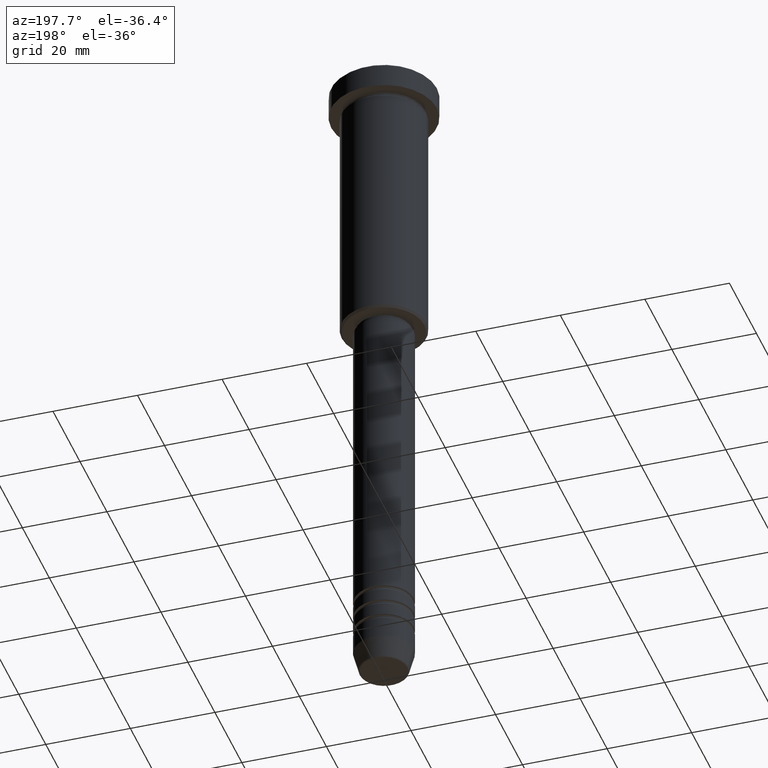
[diagram: clean part render]
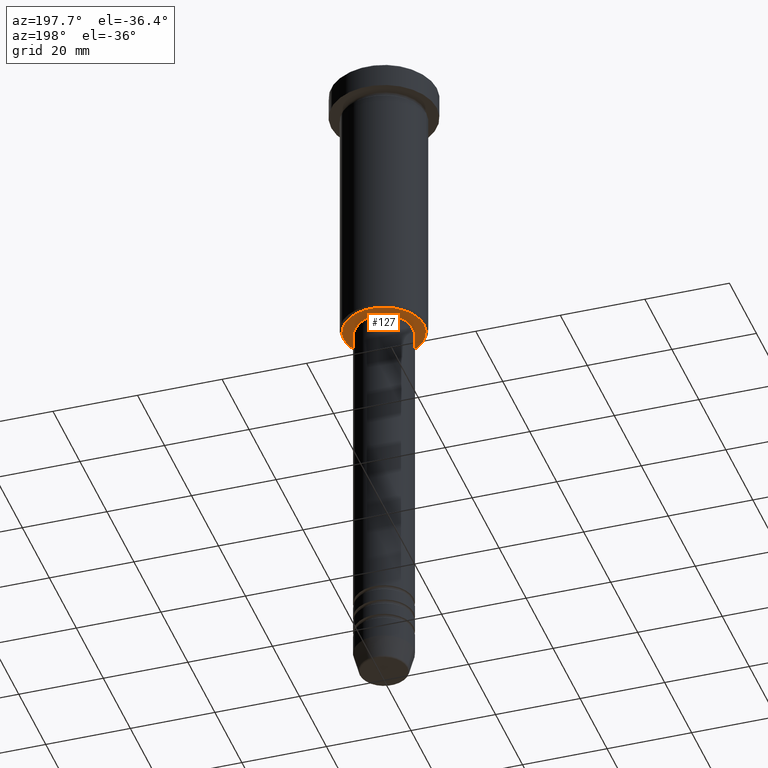
[diagram: same view with one face highlighted and labeled with its STEP entity id]
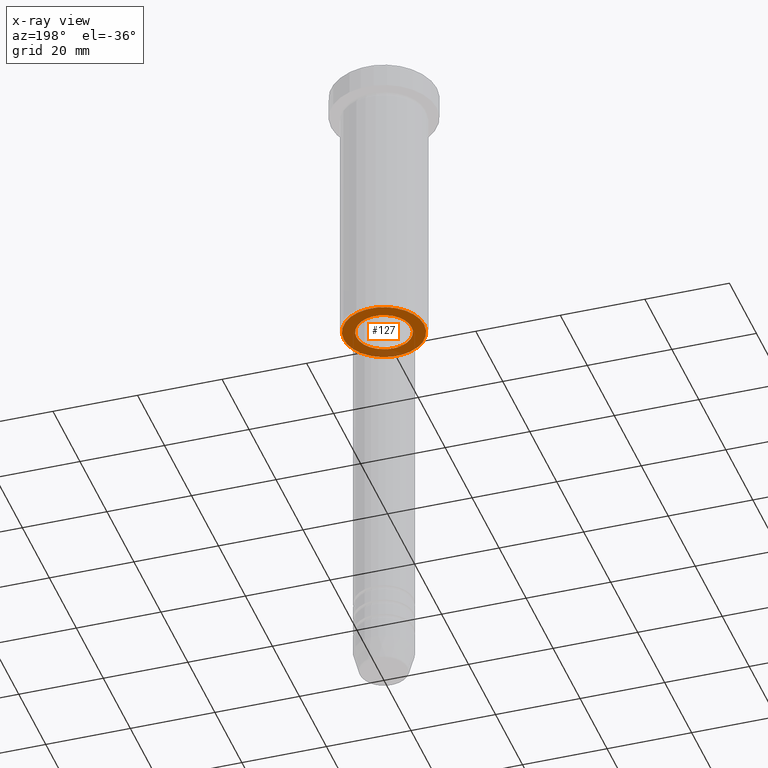
[diagram: x-ray of the same camera — body ghosted, the highlighted face saturated]
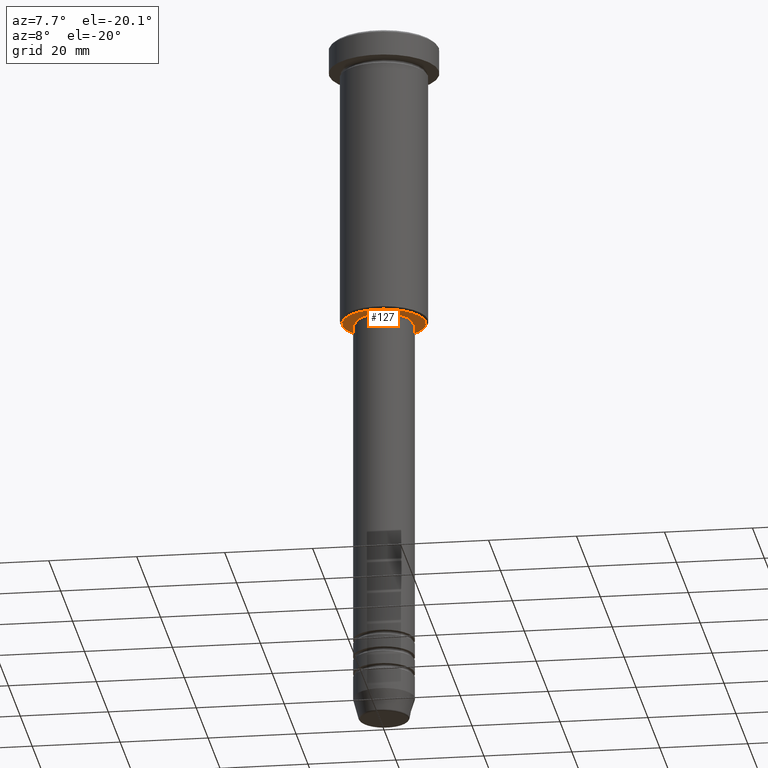
[diagram: same view with one face highlighted and labeled with its STEP entity id]
A machine part, auxiliary view. The second image highlights one B-rep face of the part: STEP entity #127.
The next image is the same camera in x-ray: the body ghosted, the highlighted face saturated — about 11% of this face is hidden behind the body in this view.
A second angle (auxiliary view) of the same face is appended — the face is thin or edge-on in the first view.
In plain terms, the highlighted planar face has unit normal (0, 0, -1).
Its self-contained STEP definition (entity closure, byte-faithful):
#8 = FACE_BOUND ( 'NONE', #214, .T. ) ;
#19 = AXIS2_PLACEMENT_3D ( 'NONE', #666, #47, #316 ) ;
#47 = DIRECTION ( 'NONE',  ( 0.000000000000000000, 0.000000000000000000, -1.000000000000000000 ) ) ;
#53 = CIRCLE ( 'NONE', #716, 6.500000000000000000 ) ;
#127 = ADVANCED_FACE ( 'NONE', ( #616, #8 ), #824, .T. ) ;
#164 = EDGE_LOOP ( 'NONE', ( #587, #640 ) ) ;
#191 = ORIENTED_EDGE ( 'NONE', *, *, #545, .T. ) ;
#214 = EDGE_LOOP ( 'NONE', ( #191, #990 ) ) ;
#246 = VERTEX_POINT ( 'NONE', #674 ) ;
#271 = DIRECTION ( 'NONE',  ( -1.000000000000000000, 0.000000000000000000, -0.000000000000000000 ) ) ;
#316 = DIRECTION ( 'NONE',  ( -1.000000000000000000, 0.000000000000000000, 0.000000000000000000 ) ) ;
#320 = EDGE_CURVE ( 'NONE', #598, #847, #53, .T. ) ;
#328 = CARTESIAN_POINT ( 'NONE',  ( 0.000000000000000000, 0.000000000000000000, -66.00000000000002842 ) ) ;
#331 = DIRECTION ( 'NONE',  ( -0.000000000000000000, -0.000000000000000000, 1.000000000000000000 ) ) ;
#348 = CARTESIAN_POINT ( 'NONE',  ( 0.000000000000000000, 0.000000000000000000, -66.00000000000002842 ) ) ;
#350 = DIRECTION ( 'NONE',  ( 0.000000000000000000, 0.000000000000000000, -1.000000000000000000 ) ) ;
#373 = CARTESIAN_POINT ( 'NONE',  ( -6.500000000000000000, 7.960204194457795477E-16, -66.00000000000002842 ) ) ;
#374 = DIRECTION ( 'NONE',  ( -0.000000000000000000, -0.000000000000000000, 1.000000000000000000 ) ) ;
#440 = CARTESIAN_POINT ( 'NONE',  ( 0.000000000000000000, 10.00000000000000000, -66.00000000000002842 ) ) ;
#545 = EDGE_CURVE ( 'NONE', #847, #598, #575, .T. ) ;
#547 = CARTESIAN_POINT ( 'NONE',  ( 0.000000000000000000, 0.000000000000000000, -66.00000000000002842 ) ) ;
#575 = CIRCLE ( 'NONE', #877, 6.500000000000000000 ) ;
#587 = ORIENTED_EDGE ( 'NONE', *, *, #811, .T. ) ;
#598 = VERTEX_POINT ( 'NONE', #373 ) ;
#616 = FACE_OUTER_BOUND ( 'NONE', #164, .T. ) ;
#635 = VERTEX_POINT ( 'NONE', #1030 ) ;
#640 = ORIENTED_EDGE ( 'NONE', *, *, #910, .T. ) ;
#656 = CIRCLE ( 'NONE', #1045, 9.499999999999994671 ) ;
#666 = CARTESIAN_POINT ( 'NONE',  ( 0.000000000000000000, 0.000000000000000000, -66.00000000000002842 ) ) ;
#674 = CARTESIAN_POINT ( 'NONE',  ( 9.499999999999994671, 0.000000000000000000, -66.00000000000002842 ) ) ;
#697 = DIRECTION ( 'NONE',  ( 0.000000000000000000, 0.000000000000000000, -1.000000000000000000 ) ) ;
#716 = AXIS2_PLACEMENT_3D ( 'NONE', #547, #374, #930 ) ;
#811 = EDGE_CURVE ( 'NONE', #246, #635, #656, .T. ) ;
#824 = PLANE ( 'NONE',  #1066 ) ;
#847 = VERTEX_POINT ( 'NONE', #957 ) ;
#877 = AXIS2_PLACEMENT_3D ( 'NONE', #348, #331, #1087 ) ;
#910 = EDGE_CURVE ( 'NONE', #635, #246, #1109, .T. ) ;
#930 = DIRECTION ( 'NONE',  ( 1.000000000000000000, 0.000000000000000000, 0.000000000000000000 ) ) ;
#957 = CARTESIAN_POINT ( 'NONE',  ( 6.500000000000000000, 0.000000000000000000, -66.00000000000002842 ) ) ;
#990 = ORIENTED_EDGE ( 'NONE', *, *, #320, .T. ) ;
#1030 = CARTESIAN_POINT ( 'NONE',  ( -9.499999999999994671, 1.194030629168669075E-15, -66.00000000000002842 ) ) ;
#1045 = AXIS2_PLACEMENT_3D ( 'NONE', #328, #697, #1068 ) ;
#1066 = AXIS2_PLACEMENT_3D ( 'NONE', #440, #350, #271 ) ;
#1068 = DIRECTION ( 'NONE',  ( -1.000000000000000000, 0.000000000000000000, 0.000000000000000000 ) ) ;
#1087 = DIRECTION ( 'NONE',  ( 1.000000000000000000, 0.000000000000000000, 0.000000000000000000 ) ) ;
#1109 = CIRCLE ( 'NONE', #19, 9.499999999999994671 ) ;